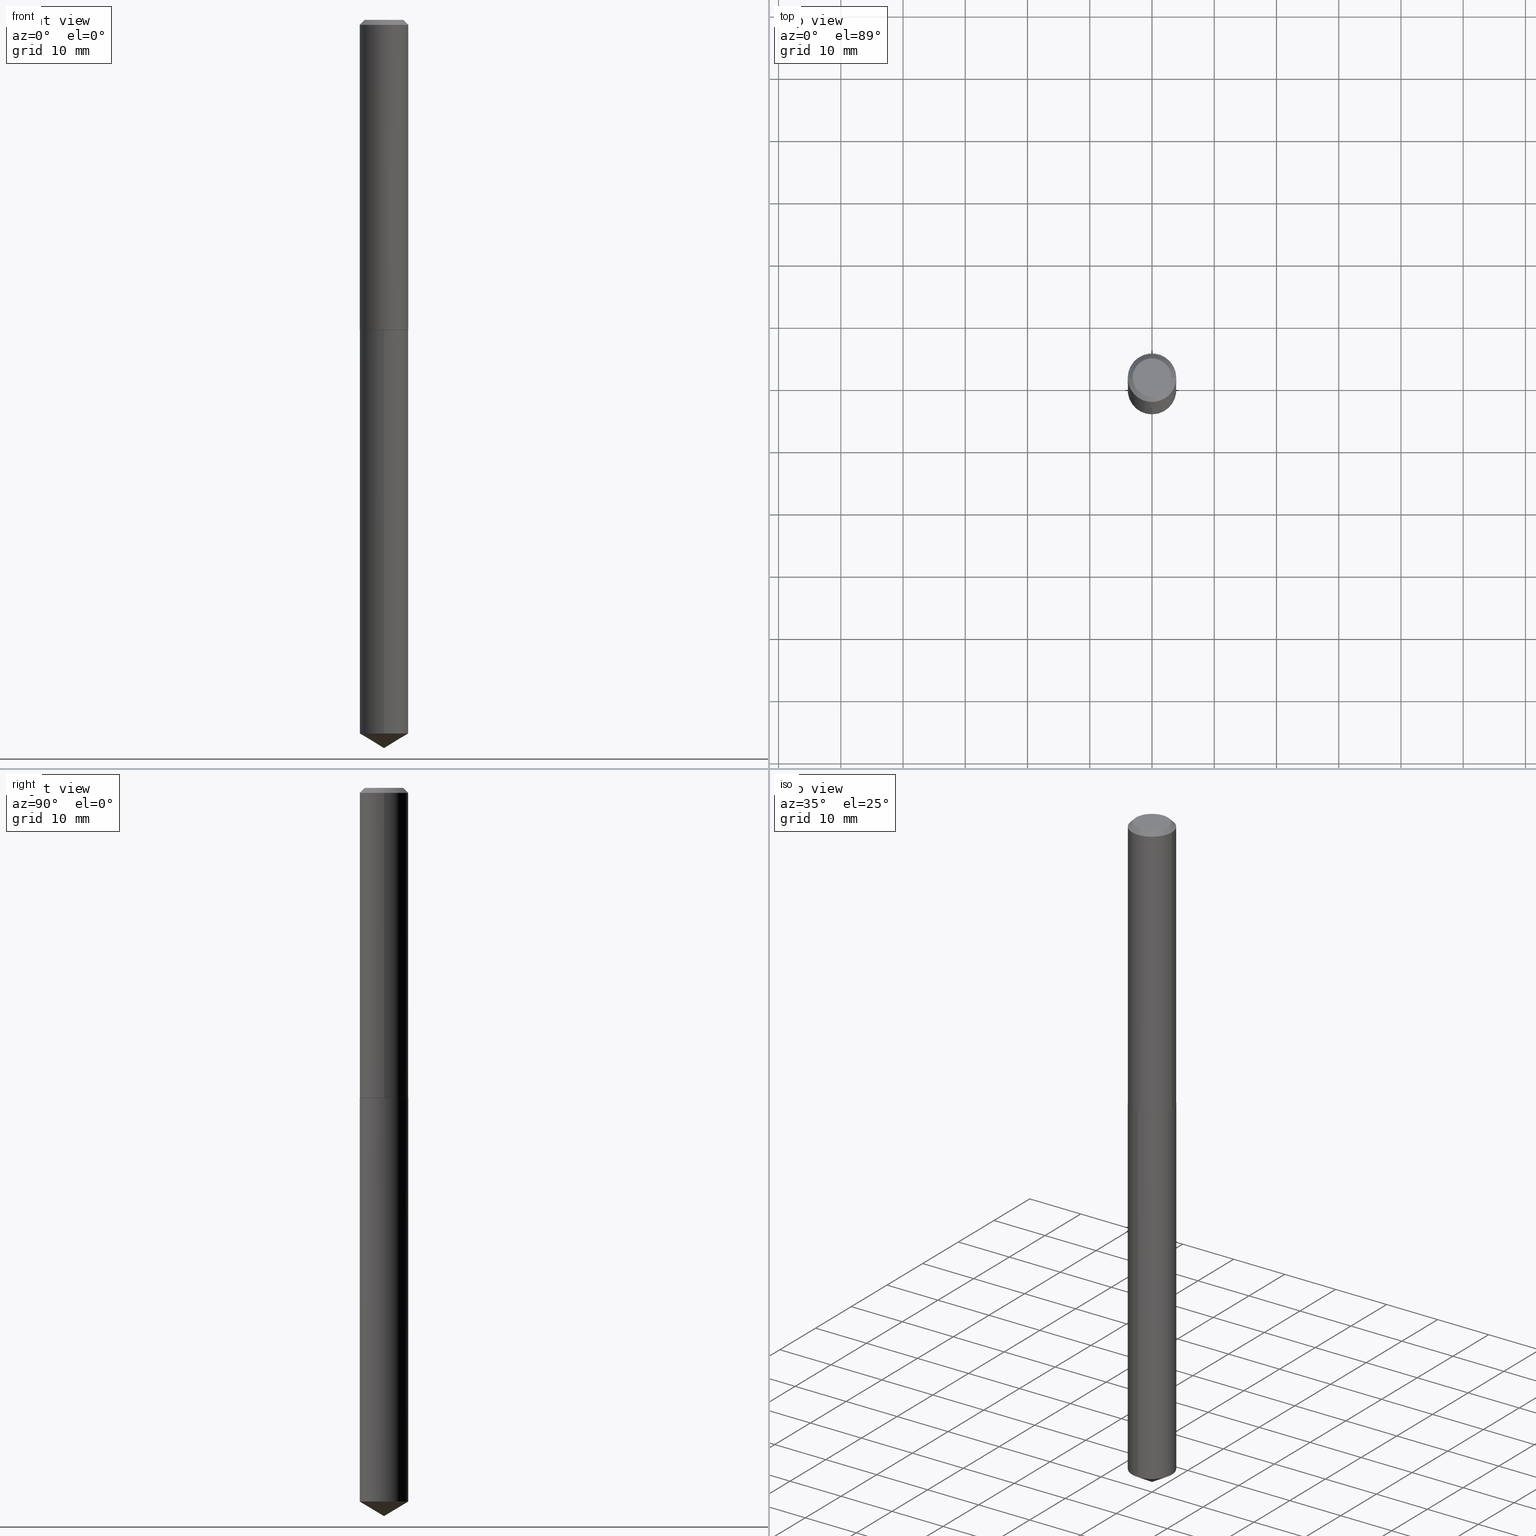
[diagram: canonical four-view strip — front | top / right | iso, engineering-drawing reading convention]
A machine part, canonical four-view strip (front | top / right | iso — engineering-drawing reading convention). The complete STEP part file that produces these views, byte-faithful:
ISO-10303-21;
HEADER;
FILE_DESCRIPTION (( 'STEP AP203' ),
    '1' );
FILE_NAME ('68348.STEP',
    '2024-04-23T13:12:02',
    ( '' ),
    ( '' ),
    'SwSTEP 2.0',
    'SolidWorks 2023',
    '' );
FILE_SCHEMA (( 'CONFIG_CONTROL_DESIGN' ));
ENDSEC;

DATA;
#1 = DIRECTION ( 'NONE',  ( 2.438088387897960049E-29, -3.491481338843145188E-15, -1.000000000000000000 ) ) ;
#2 = AXIS2_PLACEMENT_3D ( 'NONE', #12, #166, #367 ) ;
#3 = AXIS2_PLACEMENT_3D ( 'NONE', #243, #107, #201 ) ;
#4 = CARTESIAN_POINT ( 'NONE',  ( -0.1535500000000002419, -5.752614201506816077E-15, -1.960100000000000398 ) ) ;
#5 = EDGE_CURVE ( 'NONE', #291, #158, #20, .T. ) ;
#6 = CYLINDRICAL_SURFACE ( 'NONE', #139, 0.1535499999999999921 ) ;
#7 = CONICAL_SURFACE ( 'NONE', #218, 65.52281426576902845, 1.029744258676658530 ) ;
#8 = LOCAL_TIME ( 9, 12, 2.000000000000000000, #321 ) ;
#9 = DIRECTION ( 'NONE',  ( -2.445469223810943138E-29, 3.491480740779220978E-15, 1.000000000000000000 ) ) ;
#10 = VECTOR ( 'NONE', #155, 39.37007874015748854 ) ;
#11 = DIRECTION ( 'NONE',  ( 1.000000000000000000, -6.982962677686265133E-15, 0.000000000000000000 ) ) ;
#12 = CARTESIAN_POINT ( 'NONE',  ( 4.794586141406579719E-29, -6.845398312935872740E-15, -1.960600000000000342 ) ) ;
#13 = ADVANCED_FACE ( 'NONE', ( #318 ), #7, .T. ) ;
#14 = CONICAL_SURFACE ( 'NONE', #231, 0.1535499999999999921, 0.7853981633974449483 ) ;
#15 = LINE ( 'NONE', #255, #97 ) ;
#16 = DIRECTION ( 'NONE',  ( -6.982962677686265133E-15, -1.000000000000000000, 3.468864327941562660E-15 ) ) ;
#17 = EDGE_CURVE ( 'NONE', #324, #389, #344, .T. ) ;
#18 = ORIENTED_EDGE ( 'NONE', *, *, #169, .F. ) ;
#19 = CC_DESIGN_SECURITY_CLASSIFICATION ( #384, ( #115 ) ) ;
#20 = CIRCLE ( 'NONE', #326, 0.1535500000000002419 ) ;
#21 = ORIENTED_EDGE ( 'NONE', *, *, #5, .F. ) ;
#22 = APPROVAL_DATE_TIME ( #50, #371 ) ;
#23 = DIRECTION ( 'NONE',  ( 2.445468806185136597E-29, -3.491481338843145583E-15, -1.000000000000000000 ) ) ;
#24 = ORIENTED_EDGE ( 'NONE', *, *, #5, .T. ) ;
#25 = DATE_AND_TIME ( #175, #246 ) ;
#26 = EDGE_LOOP ( 'NONE', ( #118, #289, #248 ) ) ;
#27 = EDGE_CURVE ( 'NONE', #389, #324, #237, .T. ) ;
#28 = ORIENTED_EDGE ( 'NONE', *, *, #119, .T. ) ;
#29 = AXIS2_PLACEMENT_3D ( 'NONE', #251, #247, #363 ) ;
#30 = COORDINATED_UNIVERSAL_TIME_OFFSET ( 5, 0, .BEHIND. ) ;
#31 = VERTEX_POINT ( 'NONE', #290 ) ;
#32 = CARTESIAN_POINT ( 'NONE',  ( 1.126456488564034806E-28, -1.608280773625132542E-14, -4.606300000000000061 ) ) ;
#33 = DIRECTION ( 'NONE',  ( -2.445469223810942857E-29, 3.491480740779220978E-15, 1.000000000000000000 ) ) ;
#34 = VECTOR ( 'NONE', #293, 39.37007874015748143 ) ;
#35 = FACE_OUTER_BOUND ( 'NONE', #346, .T. ) ;
#36 = LINE ( 'NONE', #95, #260 ) ;
#37 = CARTESIAN_POINT ( 'NONE',  ( 0.1535500000000002419, -7.915886491425178171E-15, -1.960100000000000398 ) ) ;
#38 = AXIS2_PLACEMENT_3D ( 'NONE', #350, #179, #84 ) ;
#39 = DIRECTION ( 'NONE',  ( -2.445468806185136597E-29, 3.491481338843145583E-15, 1.000000000000000000 ) ) ;
#40 = AXIS2_PLACEMENT_3D ( 'NONE', #110, #80, #351 ) ;
#41 = CARTESIAN_POINT ( 'NONE',  ( 4.794586141406579719E-29, -6.845398312935872740E-15, -1.960600000000000342 ) ) ;
#42 = CARTESIAN_POINT ( 'NONE',  ( 1.091038370759744614E-15, 0.1535499999999931642, -1.960600000000001009 ) ) ;
#43 = ADVANCED_FACE ( 'NONE', ( #238 ), #136, .F. ) ;
#44 = LINE ( 'NONE', #232, #76 ) ;
#45 = AXIS2_PLACEMENT_3D ( 'NONE', #264, #47, #138 ) ;
#46 = PRODUCT_RELATED_PRODUCT_CATEGORY ( 'detail', '', ( #362 ) ) ;
#47 = DIRECTION ( 'NONE',  ( -2.445469223810943138E-29, 3.491480740779220978E-15, 1.000000000000000000 ) ) ;
#48 = ADVANCED_FACE ( 'NONE', ( #168 ), #14, .T. ) ;
#49 = DIRECTION ( 'NONE',  ( -1.000000000000000000, 6.982962677686266711E-15, 0.000000000000000000 ) ) ;
#50 = DATE_AND_TIME ( #137, #8 ) ;
#51 = ORIENTED_EDGE ( 'NONE', *, *, #215, .F. ) ;
#52 = VECTOR ( 'NONE', #212, 39.37007874015748854 ) ;
#53 = EDGE_LOOP ( 'NONE', ( #261, #328, #189, #18 ) ) ;
#54 = EDGE_CURVE ( 'NONE', #31, #100, #282, .T. ) ;
#55 = CARTESIAN_POINT ( 'NONE',  ( 4.794586141406579719E-29, -6.845398312935872740E-15, -1.960600000000000342 ) ) ;
#56 = ORIENTED_EDGE ( 'NONE', *, *, #27, .F. ) ;
#57 = APPROVAL_DATE_TIME ( #25, #204 ) ;
#58 = APPROVAL_ROLE ( '' ) ;
#59 = ORIENTED_EDGE ( 'NONE', *, *, #96, .F. ) ;
#60 = DIRECTION ( 'NONE',  ( 1.000000000000000000, -6.982962677686267499E-15, 4.876176775795935793E-29 ) ) ;
#61 = EDGE_CURVE ( 'NONE', #111, #158, #113, .T. ) ;
#62 = ORIENTED_EDGE ( 'NONE', *, *, #215, .T. ) ;
#63 = DATE_AND_TIME ( #91, #281 ) ;
#64 = DIRECTION ( 'NONE',  ( 0.7071067811865715536, -2.468850131082509496E-15, 0.7071067811865232589 ) ) ;
#65 = CIRCLE ( 'NONE', #172, 0.1535499999999999921 ) ;
#66 = CARTESIAN_POINT ( 'NONE',  ( 1.126456324804603563E-28, -1.608281008137958668E-14, -4.606300000000000061 ) ) ;
#67 = EDGE_LOOP ( 'NONE', ( #245, #62 ) ) ;
#68 = DIRECTION ( 'NONE',  ( -0.7071067811865451302, 2.468850131082231817E-15, -0.7071067811865499042 ) ) ;
#69 = EDGE_CURVE ( 'NONE', #100, #385, #329, .T. ) ;
#70 = CYLINDRICAL_SURFACE ( 'NONE', #2, 0.1535499999999999921 ) ;
#71 = CLOSED_SHELL ( 'NONE', ( #202, #13, #197, #325, #352 ) ) ;
#72 = ADVANCED_FACE ( 'NONE', ( #378 ), #304, .T. ) ;
#73 = CARTESIAN_POINT ( 'NONE',  ( -0.1535499999999999921, -2.385342311293014220E-15, -0.03125000000000022204 ) ) ;
#74 = DIRECTION ( 'NONE',  ( -2.445468806185136877E-29, 3.491481338843145188E-15, 1.000000000000000000 ) ) ;
#75 = DIRECTION ( 'NONE',  ( -2.445469223810943138E-29, 3.491480740779220978E-15, 1.000000000000000000 ) ) ;
#76 = VECTOR ( 'NONE', #369, 39.37007874015748143 ) ;
#77 = PERSON_AND_ORGANIZATION ( #294, #315 ) ;
#78 = ORIENTED_EDGE ( 'NONE', *, *, #319, .T. ) ;
#79 = MECHANICAL_CONTEXT ( 'NONE', #226, 'mechanical' ) ;
#80 = DIRECTION ( 'NONE',  ( -2.445468806185136597E-29, 3.491481338843145583E-15, 1.000000000000000000 ) ) ;
#81 = ORIENTED_EDGE ( 'NONE', *, *, #184, .F. ) ;
#82 = ADVANCED_BREP_SHAPE_REPRESENTATION ( '68348', ( #302, #313, #38 ), #171 ) ;
#83 = EDGE_LOOP ( 'NONE', ( #267, #181, #59 ) ) ;
#84 = DIRECTION ( 'NONE',  ( 1.000000000000000000, 0.000000000000000000, 0.000000000000000000 ) ) ;
#85 = CC_DESIGN_PERSON_AND_ORGANIZATION_ASSIGNMENT ( #216, #150, ( #115 ) ) ;
#86 = EDGE_LOOP ( 'NONE', ( #51, #174, #305, #81 ) ) ;
#87 = CARTESIAN_POINT ( 'NONE',  ( -0.1535499999999999921, 9.631251273198770455E-16, -0.03125000000000022204 ) ) ;
#88 = CONICAL_SURFACE ( 'NONE', #347, 0.1535500000000002419, 0.7853981633974824739 ) ;
#89 = VERTEX_POINT ( 'NONE', #205 ) ;
#90 = PERSON_AND_ORGANIZATION ( #294, #315 ) ;
#91 = CALENDAR_DATE ( 2024, 23, 4 ) ;
#92 = CARTESIAN_POINT ( 'NONE',  ( 1.103893982326011521E-28, -1.576067739579009076E-14, -4.514037851948319080 ) ) ;
#93 = PERSON_AND_ORGANIZATION_ROLE ( 'creator' ) ;
#94 = LINE ( 'NONE', #223, #287 ) ;
#95 = CARTESIAN_POINT ( 'NONE',  ( 1.126456490000011708E-28, -1.608280773625132542E-14, -4.606300000000000061 ) ) ;
#96 = EDGE_CURVE ( 'NONE', #176, #353, #65, .T. ) ;
#97 = VECTOR ( 'NONE', #229, 39.37007874015748143 ) ;
#98 = CARTESIAN_POINT ( 'NONE',  ( -8.501375183122544441E-28, 1.213770627754058363E-13, 34.76377874015748404 ) ) ;
#99 = CARTESIAN_POINT ( 'NONE',  ( 4.793363407003487478E-29, -6.843652572266451236E-15, -1.960100000000000398 ) ) ;
#100 = VERTEX_POINT ( 'NONE', #126 ) ;
#101 = CARTESIAN_POINT ( 'NONE',  ( 1.103893982326011521E-28, -1.576067739579009076E-14, -4.514037851948319080 ) ) ;
#102 = EDGE_CURVE ( 'NONE', #224, #176, #36, .T. ) ;
#103 = FACE_OUTER_BOUND ( 'NONE', #331, .T. ) ;
#104 = AXIS2_PLACEMENT_3D ( 'NONE', #148, #1, #303 ) ;
#105 = PLANE ( 'NONE',  #106 ) ;
#106 = AXIS2_PLACEMENT_3D ( 'NONE', #256, #134, #198 ) ;
#107 = DIRECTION ( 'NONE',  ( -2.438088387897960049E-29, 3.491481338843145188E-15, 1.000000000000000000 ) ) ;
#108 = CIRCLE ( 'NONE', #275, 0.1222999999999999782 ) ;
#109 = PERSON_AND_ORGANIZATION_ROLE ( 'design_owner' ) ;
#110 = CARTESIAN_POINT ( 'NONE',  ( 4.793363407003487478E-29, -6.843652572266451236E-15, -1.960100000000000398 ) ) ;
#111 = VERTEX_POINT ( 'NONE', #122 ) ;
#112 = PERSON_AND_ORGANIZATION ( #294, #315 ) ;
#113 = LINE ( 'NONE', #209, #52 ) ;
#114 = ORIENTED_EDGE ( 'NONE', *, *, #306, .T. ) ;
#115 = PRODUCT_DEFINITION_FORMATION_WITH_SPECIFIED_SOURCE ( 'ANY', '', #362, .NOT_KNOWN. ) ;
#116 = AXIS2_PLACEMENT_3D ( 'NONE', #312, #39, #193 ) ;
#117 = ORIENTED_EDGE ( 'NONE', *, *, #61, .F. ) ;
#118 = ORIENTED_EDGE ( 'NONE', *, *, #154, .F. ) ;
#119 = EDGE_CURVE ( 'NONE', #89, #291, #338, .T. ) ;
#120 = ORIENTED_EDGE ( 'NONE', *, *, #61, .T. ) ;
#121 = DATE_TIME_ROLE ( 'classification_date' ) ;
#122 = CARTESIAN_POINT ( 'NONE',  ( -0.1530500000000002969, -5.755263428680926489E-15, -1.960600000000000342 ) ) ;
#123 = SECURITY_CLASSIFICATION_LEVEL ( 'unclassified' ) ;
#124 = DIRECTION ( 'NONE',  ( -6.982962677686266711E-15, -1.000000000000000000, 3.558252026915354491E-15 ) ) ;
#125 = APPROVAL ( #273, 'UNSPECIFIED' ) ;
#126 = CARTESIAN_POINT ( 'NONE',  ( 0.1222999999999999782, -1.000788582262062883E-15, 2.449293598359575941E-19 ) ) ;
#127 = CARTESIAN_POINT ( 'NONE',  ( 4.794586141406579719E-29, -6.845398312935872740E-15, -1.960600000000000342 ) ) ;
#128 = DIRECTION ( 'NONE',  ( -2.445468806185136597E-29, 3.491481338843145583E-15, 1.000000000000000000 ) ) ;
#129 = EDGE_CURVE ( 'NONE', #111, #89, #152, .T. ) ;
#130 = FACE_OUTER_BOUND ( 'NONE', #355, .T. ) ;
#131 = APPROVAL_PERSON_ORGANIZATION ( #112, #204, #354 ) ;
#132 =( LENGTH_UNIT ( ) NAMED_UNIT ( * ) SI_UNIT ( $, .METRE. ) );
#133 = AXIS2_PLACEMENT_3D ( 'NONE', #98, #188, #153 ) ;
#134 = DIRECTION ( 'NONE',  ( 2.445469223810942577E-29, -3.491480740779220978E-15, -1.000000000000000000 ) ) ;
#135 = ADVANCED_FACE ( 'NONE', ( #35 ), #217, .T. ) ;
#136 = PLANE ( 'NONE',  #3 ) ;
#137 = CALENDAR_DATE ( 2024, 23, 4 ) ;
#138 = DIRECTION ( 'NONE',  ( -6.982962677686266711E-15, -1.000000000000000000, 3.558252026915354491E-15 ) ) ;
#139 = AXIS2_PLACEMENT_3D ( 'NONE', #127, #9, #337 ) ;
#140 = ORIENTED_EDGE ( 'NONE', *, *, #69, .F. ) ;
#141 = ORIENTED_EDGE ( 'NONE', *, *, #184, .T. ) ;
#142 = DIRECTION ( 'NONE',  ( -6.982962677686266711E-15, -1.000000000000000000, 3.558252026915354491E-15 ) ) ;
#143 = CARTESIAN_POINT ( 'NONE',  ( -5.989671091818699506E-48, 8.551662891794013634E-34, 2.449293598294725547E-19 ) ) ;
#144 = PRODUCT_DEFINITION ( 'UNKNOWN', '', #115, #343 ) ;
#145 = AXIS2_PLACEMENT_3D ( 'NONE', #190, #234, #285 ) ;
#146 = ORIENTED_EDGE ( 'NONE', *, *, #368, .F. ) ;
#147 = COORDINATED_UNIVERSAL_TIME_OFFSET ( 5, 0, .BEHIND. ) ;
#148 = CARTESIAN_POINT ( 'NONE',  ( -2.994835545909349753E-48, 4.275831445897006817E-34, 1.224646799147362773E-19 ) ) ;
#149 = ORIENTED_EDGE ( 'NONE', *, *, #129, .F. ) ;
#150 = PERSON_AND_ORGANIZATION_ROLE ( 'design_supplier' ) ;
#151 = CARTESIAN_POINT ( 'NONE',  ( -5.989671091818699506E-48, 8.551662891794013634E-34, 2.449293598294725547E-19 ) ) ;
#152 = CIRCLE ( 'NONE', #386, 0.1530500000000002969 ) ;
#153 = DIRECTION ( 'NONE',  ( -6.982962677686265133E-15, -1.000000000000000000, 3.468864327941562660E-15 ) ) ;
#154 = EDGE_CURVE ( 'NONE', #224, #353, #340, .T. ) ;
#155 = DIRECTION ( 'NONE',  ( -5.985567269335957057E-15, -0.8571673007021125557, 0.5150380749100536004 ) ) ;
#156 = DIRECTION ( 'NONE',  ( 1.000000000000000000, -6.982962677686265133E-15, 0.000000000000000000 ) ) ;
#157 = LOCAL_TIME ( 9, 12, 2.000000000000000000, #147 ) ;
#158 = VERTEX_POINT ( 'NONE', #4 ) ;
#159 = EDGE_CURVE ( 'NONE', #353, #176, #164, .T. ) ;
#160 = DIRECTION ( 'NONE',  ( -2.445469223810943138E-29, 3.491480740779220978E-15, 1.000000000000000000 ) ) ;
#161 = CARTESIAN_POINT ( 'NONE',  ( 4.793363407003487478E-29, -6.843652572266451236E-15, -1.960100000000000398 ) ) ;
#162 = CC_DESIGN_PERSON_AND_ORGANIZATION_ASSIGNMENT ( #222, #333, ( #384 ) ) ;
#163 = CARTESIAN_POINT ( 'NONE',  ( 0.1535500000000002419, -7.915886491425178171E-15, -1.960100000000000398 ) ) ;
#164 = CIRCLE ( 'NONE', #309, 0.1535499999999999921 ) ;
#165 = ADVANCED_FACE ( 'NONE', ( #307 ), #274, .T. ) ;
#166 = DIRECTION ( 'NONE',  ( -2.445469223810943138E-29, 3.491480740779220978E-15, 1.000000000000000000 ) ) ;
#167 = APPROVAL_ROLE ( '' ) ;
#168 = FACE_OUTER_BOUND ( 'NONE', #86, .T. ) ;
#169 = EDGE_CURVE ( 'NONE', #353, #324, #185, .T. ) ;
#170 = APPROVAL_STATUS ( 'not_yet_approved' ) ;
#171 =( GEOMETRIC_REPRESENTATION_CONTEXT ( 3 ) GLOBAL_UNCERTAINTY_ASSIGNED_CONTEXT ( ( #257 ) ) GLOBAL_UNIT_ASSIGNED_CONTEXT ( ( #314, #349, #387 ) ) REPRESENTATION_CONTEXT ( 'NONE', 'WORKASPACE' ) );
#172 = AXIS2_PLACEMENT_3D ( 'NONE', #101, #160, #301 ) ;
#173 = CLOSED_SHELL ( 'NONE', ( #48, #165, #377, #43, #72, #135, #310, #233 ) ) ;
#174 = ORIENTED_EDGE ( 'NONE', *, *, #69, .T. ) ;
#175 = CALENDAR_DATE ( 2024, 23, 4 ) ;
#176 = VERTEX_POINT ( 'NONE', #280 ) ;
#177 = EDGE_LOOP ( 'NONE', ( #24, #336, #379, #359 ) ) ;
#178 = CARTESIAN_POINT ( 'NONE',  ( 0.1535499999999999921, -1.162538259396667614E-15, -0.03125000000000022204 ) ) ;
#179 = DIRECTION ( 'NONE',  ( 0.000000000000000000, 0.000000000000000000, 1.000000000000000000 ) ) ;
#180 = AXIS2_PLACEMENT_3D ( 'NONE', #99, #228, #342 ) ;
#181 = ORIENTED_EDGE ( 'NONE', *, *, #154, .T. ) ;
#182 = DIRECTION ( 'NONE',  ( -2.445469223810943138E-29, 3.491480740779220978E-15, 1.000000000000000000 ) ) ;
#183 = ORIENTED_EDGE ( 'NONE', *, *, #96, .T. ) ;
#184 = EDGE_CURVE ( 'NONE', #31, #382, #186, .T. ) ;
#185 = LINE ( 'NONE', #249, #266 ) ;
#186 = LINE ( 'NONE', #87, #348 ) ;
#187 = CC_DESIGN_PERSON_AND_ORGANIZATION_ASSIGNMENT ( #239, #295, ( #144 ) ) ;
#188 = DIRECTION ( 'NONE',  ( -2.445469223810943138E-29, 3.491480740779220978E-15, 1.000000000000000000 ) ) ;
#189 = ORIENTED_EDGE ( 'NONE', *, *, #17, .F. ) ;
#190 = CARTESIAN_POINT ( 'NONE',  ( 7.642090019328606165E-31, -1.091087918388490760E-16, -0.03125000000000022204 ) ) ;
#191 = APPROVAL_PERSON_ORGANIZATION ( #77, #371, #167 ) ;
#192 = CIRCLE ( 'NONE', #116, 0.1535499999999999921 ) ;
#193 = DIRECTION ( 'NONE',  ( 1.000000000000000000, -6.982962677686267499E-15, 0.000000000000000000 ) ) ;
#194 = CARTESIAN_POINT ( 'NONE',  ( 0.1535499999999999921, -1.181342710997575444E-15, -0.03125000000000022204 ) ) ;
#195 = CC_DESIGN_PERSON_AND_ORGANIZATION_ASSIGNMENT ( #300, #93, ( #115 ) ) ;
#196 = LENGTH_MEASURE_WITH_UNIT ( LENGTH_MEASURE( 0.02539999999999999897 ), #132 );
#197 = ADVANCED_FACE ( 'NONE', ( #220 ), #370, .T. ) ;
#198 = DIRECTION ( 'NONE',  ( 6.982962677686265922E-15, 1.000000000000000000, -3.491480740779220978E-15 ) ) ;
#199 = AXIS2_PLACEMENT_3D ( 'NONE', #55, #75, #142 ) ;
#200 = CC_DESIGN_DATE_AND_TIME_ASSIGNMENT ( #270, #121, ( #384 ) ) ;
#201 = DIRECTION ( 'NONE',  ( 1.000000000000000000, -6.982962677686265922E-15, 4.876176775795935793E-29 ) ) ;
#202 = ADVANCED_FACE ( 'NONE', ( #276 ), #6, .T. ) ;
#203 = DATE_TIME_ROLE ( 'creation_date' ) ;
#204 = APPROVAL ( #236, 'UNSPECIFIED' ) ;
#205 = CARTESIAN_POINT ( 'NONE',  ( 0.1530500000000002969, -7.914140750755757456E-15, -1.960600000000000342 ) ) ;
#206 = EDGE_LOOP ( 'NONE', ( #263, #120, #21, #383 ) ) ;
#207 = PERSON_AND_ORGANIZATION ( #294, #315 ) ;
#208 = AXIS2_PLACEMENT_3D ( 'NONE', #334, #278, #60 ) ;
#209 = CARTESIAN_POINT ( 'NONE',  ( -0.1535500000000002419, -5.752614201506816077E-15, -1.960100000000000398 ) ) ;
#210 = APPLICATION_CONTEXT ( 'configuration controlled 3d designs of mechanical parts and assemblies' ) ;
#211 = EDGE_LOOP ( 'NONE', ( #117, #268, #28, #244 ) ) ;
#212 = DIRECTION ( 'NONE',  ( -0.7071067811865715536, 7.493145998870439357E-15, 0.7071067811865232589 ) ) ;
#213 = EDGE_LOOP ( 'NONE', ( #388, #330 ) ) ;
#214 = COORDINATED_UNIVERSAL_TIME_OFFSET ( 5, 0, .BEHIND. ) ;
#215 = EDGE_CURVE ( 'NONE', #100, #31, #108, .T. ) ;
#216 = PERSON_AND_ORGANIZATION ( #294, #315 ) ;
#217 = CYLINDRICAL_SURFACE ( 'NONE', #335, 0.1535500000000001031 ) ;
#218 = AXIS2_PLACEMENT_3D ( 'NONE', #292, #327, #16 ) ;
#219 = APPROVAL_DATE_TIME ( #63, #125 ) ;
#220 = FACE_OUTER_BOUND ( 'NONE', #83, .T. ) ;
#221 = ORIENTED_EDGE ( 'NONE', *, *, #306, .F. ) ;
#222 = PERSON_AND_ORGANIZATION ( #294, #315 ) ;
#223 = CARTESIAN_POINT ( 'NONE',  ( -0.1535500000000001031, 1.091038370759634568E-15, -7.553024831086413478E-30 ) ) ;
#224 = VERTEX_POINT ( 'NONE', #32 ) ;
#225 = EDGE_LOOP ( 'NONE', ( #146, #149 ) ) ;
#226 = APPLICATION_CONTEXT ( 'configuration controlled 3d designs of mechanical parts and assemblies' ) ;
#227 = DIRECTION ( 'NONE',  ( -2.445468806185136597E-29, 3.491481338843145583E-15, 1.000000000000000000 ) ) ;
#228 = DIRECTION ( 'NONE',  ( -2.445468806185136597E-29, 3.491481338843145583E-15, 1.000000000000000000 ) ) ;
#229 = DIRECTION ( 'NONE',  ( -2.445468806185136877E-29, 3.491481338843145188E-15, 1.000000000000000000 ) ) ;
#230 = LOCAL_TIME ( 9, 12, 2.000000000000000000, #30 ) ;
#231 = AXIS2_PLACEMENT_3D ( 'NONE', #320, #23, #49 ) ;
#232 = CARTESIAN_POINT ( 'NONE',  ( 1.091038370759681505E-15, 0.1535499999999931364, -1.960600000000001009 ) ) ;
#233 = ADVANCED_FACE ( 'NONE', ( #254 ), #272, .F. ) ;
#234 = DIRECTION ( 'NONE',  ( 2.445468806185136597E-29, -3.491481338843145583E-15, -1.000000000000000000 ) ) ;
#235 = CARTESIAN_POINT ( 'NONE',  ( -1.072233919158615706E-15, -0.1535500000000157572, -4.514037851948318192 ) ) ;
#236 = APPROVAL_STATUS ( 'not_yet_approved' ) ;
#237 = CIRCLE ( 'NONE', #45, 0.1535499999999999921 ) ;
#238 = FACE_OUTER_BOUND ( 'NONE', #225, .T. ) ;
#239 = PERSON_AND_ORGANIZATION ( #294, #315 ) ;
#240 = DIRECTION ( 'NONE',  ( 1.000000000000000000, -6.982962677686264344E-15, 0.000000000000000000 ) ) ;
#241 = ORIENTED_EDGE ( 'NONE', *, *, #341, .F. ) ;
#242 = AXIS2_PLACEMENT_3D ( 'NONE', #143, #381, #357 ) ;
#243 = CARTESIAN_POINT ( 'NONE',  ( 7.238308800279693274E-29, -3.345848377373540885E-15, -1.960600000000000342 ) ) ;
#244 = ORIENTED_EDGE ( 'NONE', *, *, #372, .F. ) ;
#245 = ORIENTED_EDGE ( 'NONE', *, *, #54, .T. ) ;
#246 = LOCAL_TIME ( 9, 12, 2.000000000000000000, #214 ) ;
#247 = DIRECTION ( 'NONE',  ( -2.445468806185136597E-29, 3.491481338843145583E-15, 1.000000000000000000 ) ) ;
#248 = ORIENTED_EDGE ( 'NONE', *, *, #159, .F. ) ;
#249 = CARTESIAN_POINT ( 'NONE',  ( -1.072233919158678223E-15, -0.1535500000000068477, -1.960599999999999898 ) ) ;
#250 = CARTESIAN_POINT ( 'NONE',  ( 0.000000000000000000, 0.000000000000000000, 0.000000000000000000 ) ) ;
#251 = CARTESIAN_POINT ( 'NONE',  ( 7.642090019328606165E-31, -1.091087918388490760E-16, -0.03125000000000022204 ) ) ;
#252 = ORIENTED_EDGE ( 'NONE', *, *, #279, .F. ) ;
#253 = EDGE_CURVE ( 'NONE', #385, #382, #356, .T. ) ;
#254 = FACE_OUTER_BOUND ( 'NONE', #67, .T. ) ;
#255 = CARTESIAN_POINT ( 'NONE',  ( 0.1535500000000001031, -1.072233919158727132E-15, 7.487369439234664785E-30 ) ) ;
#256 = CARTESIAN_POINT ( 'NONE',  ( 4.794586141406579719E-29, -6.845398312935872740E-15, -1.960600000000000342 ) ) ;
#257 = UNCERTAINTY_MEASURE_WITH_UNIT (LENGTH_MEASURE( 1.000000000000000082E-05 ), #314, 'distance_accuracy_value', 'NONE');
#258 = CALENDAR_DATE ( 2024, 23, 4 ) ;
#259 = CC_DESIGN_APPROVAL ( #371, ( #115 ) ) ;
#260 = VECTOR ( 'NONE', #339, 39.37007874015748143 ) ;
#261 = ORIENTED_EDGE ( 'NONE', *, *, #159, .T. ) ;
#262 = CARTESIAN_POINT ( 'NONE',  ( 4.793363407003487478E-29, -6.843652572266451236E-15, -1.960100000000000398 ) ) ;
#263 = ORIENTED_EDGE ( 'NONE', *, *, #368, .T. ) ;
#264 = CARTESIAN_POINT ( 'NONE',  ( 4.794586141406579719E-29, -6.845398312935872740E-15, -1.960600000000000342 ) ) ;
#265 = CC_DESIGN_APPROVAL ( #204, ( #144 ) ) ;
#266 = VECTOR ( 'NONE', #33, 39.37007874015748143 ) ;
#267 = ORIENTED_EDGE ( 'NONE', *, *, #102, .F. ) ;
#268 = ORIENTED_EDGE ( 'NONE', *, *, #129, .T. ) ;
#269 = ORIENTED_EDGE ( 'NONE', *, *, #372, .T. ) ;
#270 = DATE_AND_TIME ( #298, #157 ) ;
#271 = CC_DESIGN_PERSON_AND_ORGANIZATION_ASSIGNMENT ( #207, #109, ( #362 ) ) ;
#272 = PLANE ( 'NONE',  #104 ) ;
#273 = APPROVAL_STATUS ( 'not_yet_approved' ) ;
#274 = CYLINDRICAL_SURFACE ( 'NONE', #208, 0.1535500000000001031 ) ;
#275 = AXIS2_PLACEMENT_3D ( 'NONE', #151, #128, #299 ) ;
#276 = FACE_OUTER_BOUND ( 'NONE', #53, .T. ) ;
#277 = PRODUCT_DEFINITION_SHAPE ( 'NONE', 'NONE',  #144 ) ;
#278 = DIRECTION ( 'NONE',  ( -2.445468806185136597E-29, 3.491481338843145583E-15, 1.000000000000000000 ) ) ;
#279 = EDGE_CURVE ( 'NONE', #158, #382, #94, .T. ) ;
#280 = CARTESIAN_POINT ( 'NONE',  ( 1.091038370759744219E-15, 0.1535499999999842269, -4.514037851948319080 ) ) ;
#281 = LOCAL_TIME ( 9, 12, 2.000000000000000000, #297 ) ;
#282 = CIRCLE ( 'NONE', #242, 0.1222999999999999782 ) ;
#283 = FACE_OUTER_BOUND ( 'NONE', #213, .T. ) ;
#284 = DIRECTION ( 'NONE',  ( -2.445468806185136597E-29, 3.491481338843145583E-15, 1.000000000000000000 ) ) ;
#285 = DIRECTION ( 'NONE',  ( -1.000000000000000000, 6.982962677686266711E-15, 0.000000000000000000 ) ) ;
#286 = CIRCLE ( 'NONE', #296, 0.1530500000000002969 ) ;
#287 = VECTOR ( 'NONE', #74, 39.37007874015748143 ) ;
#288 = DIRECTION ( 'NONE',  ( -2.445468806185136597E-29, 3.491481338843145583E-15, 1.000000000000000000 ) ) ;
#289 = ORIENTED_EDGE ( 'NONE', *, *, #102, .T. ) ;
#290 = CARTESIAN_POINT ( 'NONE',  ( -0.1222999999999999782, 9.085707314004538757E-16, 2.449293598233094825E-19 ) ) ;
#291 = VERTEX_POINT ( 'NONE', #163 ) ;
#292 = CARTESIAN_POINT ( 'NONE',  ( -8.501375183122544441E-28, 1.213770627754058363E-13, 34.76377874015748404 ) ) ;
#293 = DIRECTION ( 'NONE',  ( 0.7071067811865451302, -7.319954787623248157E-15, -0.7071067811865499042 ) ) ;
#294 = PERSON ( 'UNSPECIFIED', 'UNSPECIFIED', 'UNSPECIFIED', ('UNSPECIFIED'), ('UNSPECIFIED'), ('UNSPECIFIED') ) ;
#295 = PERSON_AND_ORGANIZATION_ROLE ( 'creator' ) ;
#296 = AXIS2_PLACEMENT_3D ( 'NONE', #41, #317, #11 ) ;
#297 = COORDINATED_UNIVERSAL_TIME_OFFSET ( 5, 0, .BEHIND. ) ;
#298 = CALENDAR_DATE ( 2024, 23, 4 ) ;
#299 = DIRECTION ( 'NONE',  ( 1.000000000000000000, -6.982962677686266711E-15, 4.876172253785905870E-29 ) ) ;
#300 = PERSON_AND_ORGANIZATION ( #294, #315 ) ;
#301 = DIRECTION ( 'NONE',  ( -6.982962677686266711E-15, -1.000000000000000000, 3.558252026915354491E-15 ) ) ;
#302 = MANIFOLD_SOLID_BREP ( 'Body-Move/Copy2[1]', #71 ) ;
#303 = DIRECTION ( 'NONE',  ( -1.000000000000000000, 6.982962677686265922E-15, -4.876176775795935793E-29 ) ) ;
#304 = CONICAL_SURFACE ( 'NONE', #40, 0.1535500000000002419, 0.7853981633974824739 ) ;
#305 = ORIENTED_EDGE ( 'NONE', *, *, #253, .T. ) ;
#306 = EDGE_CURVE ( 'NONE', #382, #385, #192, .T. ) ;
#307 = FACE_OUTER_BOUND ( 'NONE', #177, .T. ) ;
#308 = CARTESIAN_POINT ( 'NONE',  ( -1.072233919158678223E-15, -0.1535500000000068477, -1.960599999999999898 ) ) ;
#309 = AXIS2_PLACEMENT_3D ( 'NONE', #92, #182, #124 ) ;
#310 = ADVANCED_FACE ( 'NONE', ( #130 ), #316, .T. ) ;
#311 = FACE_OUTER_BOUND ( 'NONE', #206, .T. ) ;
#312 = CARTESIAN_POINT ( 'NONE',  ( 7.642090019328606165E-31, -1.091087918388490760E-16, -0.03125000000000022204 ) ) ;
#313 = MANIFOLD_SOLID_BREP ( 'Body-Move/Copy2[2]', #173 ) ;
#314 =( CONVERSION_BASED_UNIT ( 'INCH', #196 ) LENGTH_UNIT ( ) NAMED_UNIT ( #366 ) );
#315 = ORGANIZATION ( 'UNSPECIFIED', 'UNSPECIFIED', '' ) ;
#316 = CONICAL_SURFACE ( 'NONE', #145, 0.1535499999999999921, 0.7853981633974449483 ) ;
#317 = DIRECTION ( 'NONE',  ( -2.445468806185136597E-29, 3.491481338843145583E-15, 1.000000000000000000 ) ) ;
#318 = FACE_OUTER_BOUND ( 'NONE', #26, .T. ) ;
#319 = EDGE_CURVE ( 'NONE', #291, #385, #15, .T. ) ;
#320 = CARTESIAN_POINT ( 'NONE',  ( 7.642090019328606165E-31, -1.091087918388490760E-16, -0.03125000000000022204 ) ) ;
#321 = COORDINATED_UNIVERSAL_TIME_OFFSET ( 5, 0, .BEHIND. ) ;
#322 = ORIENTED_EDGE ( 'NONE', *, *, #54, .F. ) ;
#323 = APPROVAL_PERSON_ORGANIZATION ( #90, #125, #58 ) ;
#324 = VERTEX_POINT ( 'NONE', #308 ) ;
#325 = ADVANCED_FACE ( 'NONE', ( #103 ), #70, .T. ) ;
#326 = AXIS2_PLACEMENT_3D ( 'NONE', #262, #288, #240 ) ;
#327 = DIRECTION ( 'NONE',  ( -2.445469223810943138E-29, 3.491480740779220978E-15, 1.000000000000000000 ) ) ;
#328 = ORIENTED_EDGE ( 'NONE', *, *, #341, .T. ) ;
#329 = LINE ( 'NONE', #178, #34 ) ;
#330 = ORIENTED_EDGE ( 'NONE', *, *, #27, .T. ) ;
#331 = EDGE_LOOP ( 'NONE', ( #241, #183, #358, #56 ) ) ;
#332 = CIRCLE ( 'NONE', #180, 0.1535500000000002419 ) ;
#333 = PERSON_AND_ORGANIZATION_ROLE ( 'classification_officer' ) ;
#334 = CARTESIAN_POINT ( 'NONE',  ( 0.000000000000000000, 0.000000000000000000, 0.000000000000000000 ) ) ;
#335 = AXIS2_PLACEMENT_3D ( 'NONE', #250, #227, #364 ) ;
#336 = ORIENTED_EDGE ( 'NONE', *, *, #279, .T. ) ;
#337 = DIRECTION ( 'NONE',  ( -6.982962677686266711E-15, -1.000000000000000000, 3.558252026915354491E-15 ) ) ;
#338 = LINE ( 'NONE', #37, #361 ) ;
#339 = DIRECTION ( 'NONE',  ( 6.090539988449795002E-15, 0.8571673007021161084, 0.5150380749100477162 ) ) ;
#340 = LINE ( 'NONE', #66, #10 ) ;
#341 = EDGE_CURVE ( 'NONE', #176, #389, #44, .T. ) ;
#342 = DIRECTION ( 'NONE',  ( 1.000000000000000000, -6.982962677686264344E-15, 0.000000000000000000 ) ) ;
#343 = DESIGN_CONTEXT ( 'detailed design', #210, 'design' ) ;
#344 = CIRCLE ( 'NONE', #199, 0.1535499999999999921 ) ;
#345 = DIRECTION ( 'NONE',  ( 1.000000000000000000, -6.982962677686264344E-15, 0.000000000000000000 ) ) ;
#346 = EDGE_LOOP ( 'NONE', ( #252, #269, #78, #221 ) ) ;
#347 = AXIS2_PLACEMENT_3D ( 'NONE', #161, #284, #345 ) ;
#348 = VECTOR ( 'NONE', #68, 39.37007874015748143 ) ;
#349 =( NAMED_UNIT ( * ) PLANE_ANGLE_UNIT ( ) SI_UNIT ( $, .RADIAN. ) );
#350 = CARTESIAN_POINT ( 'NONE',  ( 0.000000000000000000, 0.000000000000000000, 0.000000000000000000 ) ) ;
#351 = DIRECTION ( 'NONE',  ( 1.000000000000000000, -6.982962677686264344E-15, 0.000000000000000000 ) ) ;
#352 = ADVANCED_FACE ( 'NONE', ( #283 ), #105, .F. ) ;
#353 = VERTEX_POINT ( 'NONE', #235 ) ;
#354 = APPROVAL_ROLE ( '' ) ;
#355 = EDGE_LOOP ( 'NONE', ( #140, #322, #141, #114 ) ) ;
#356 = CIRCLE ( 'NONE', #29, 0.1535499999999999921 ) ;
#357 = DIRECTION ( 'NONE',  ( 1.000000000000000000, -6.982962677686266711E-15, 4.876172253785905870E-29 ) ) ;
#358 = ORIENTED_EDGE ( 'NONE', *, *, #169, .T. ) ;
#359 = ORIENTED_EDGE ( 'NONE', *, *, #319, .F. ) ;
#360 = CARTESIAN_POINT ( 'NONE',  ( 4.794586141406579719E-29, -6.845398312935872740E-15, -1.960600000000000342 ) ) ;
#361 = VECTOR ( 'NONE', #64, 39.37007874015748854 ) ;
#362 = PRODUCT ( '68348', '68348', '', ( #79 ) ) ;
#363 = DIRECTION ( 'NONE',  ( 1.000000000000000000, -6.982962677686267499E-15, 0.000000000000000000 ) ) ;
#364 = DIRECTION ( 'NONE',  ( 1.000000000000000000, -6.982962677686267499E-15, 4.876176775795935793E-29 ) ) ;
#365 = DIRECTION ( 'NONE',  ( -2.445468806185136597E-29, 3.491481338843145583E-15, 1.000000000000000000 ) ) ;
#366 = DIMENSIONAL_EXPONENTS ( 1.000000000000000000, 0.000000000000000000, 0.000000000000000000, 0.000000000000000000, 0.000000000000000000, 0.000000000000000000, 0.000000000000000000 ) ;
#367 = DIRECTION ( 'NONE',  ( -6.982962677686266711E-15, -1.000000000000000000, 3.558252026915354491E-15 ) ) ;
#368 = EDGE_CURVE ( 'NONE', #89, #111, #286, .T. ) ;
#369 = DIRECTION ( 'NONE',  ( -2.445469223810942857E-29, 3.491480740779220978E-15, 1.000000000000000000 ) ) ;
#370 = CONICAL_SURFACE ( 'NONE', #133, 65.52281426576902845, 1.029744258676658530 ) ;
#371 = APPROVAL ( #170, 'UNSPECIFIED' ) ;
#372 = EDGE_CURVE ( 'NONE', #158, #291, #332, .T. ) ;
#373 = DATE_AND_TIME ( #258, #230 ) ;
#374 = CC_DESIGN_APPROVAL ( #125, ( #384 ) ) ;
#375 = CC_DESIGN_DATE_AND_TIME_ASSIGNMENT ( #373, #203, ( #144 ) ) ;
#376 = APPLICATION_PROTOCOL_DEFINITION ( 'international standard', 'config_control_design', 1994, #210 ) ;
#377 = ADVANCED_FACE ( 'NONE', ( #311 ), #88, .T. ) ;
#378 = FACE_OUTER_BOUND ( 'NONE', #211, .T. ) ;
#379 = ORIENTED_EDGE ( 'NONE', *, *, #253, .F. ) ;
#380 = APPLICATION_PROTOCOL_DEFINITION ( 'international standard', 'config_control_design', 1994, #226 ) ;
#381 = DIRECTION ( 'NONE',  ( -2.445468806185136597E-29, 3.491481338843145583E-15, 1.000000000000000000 ) ) ;
#382 = VERTEX_POINT ( 'NONE', #73 ) ;
#383 = ORIENTED_EDGE ( 'NONE', *, *, #119, .F. ) ;
#384 = SECURITY_CLASSIFICATION ( '', '', #123 ) ;
#385 = VERTEX_POINT ( 'NONE', #194 ) ;
#386 = AXIS2_PLACEMENT_3D ( 'NONE', #360, #365, #156 ) ;
#387 =( NAMED_UNIT ( * ) SI_UNIT ( $, .STERADIAN. ) SOLID_ANGLE_UNIT ( ) );
#388 = ORIENTED_EDGE ( 'NONE', *, *, #17, .T. ) ;
#389 = VERTEX_POINT ( 'NONE', #42 ) ;
#390 = SHAPE_DEFINITION_REPRESENTATION ( #277, #82 ) ;
ENDSEC;
END-ISO-10303-21;
